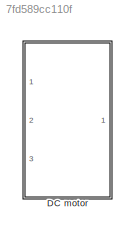
MODEL slx_7fd589cc110f
KIND model
CONFIG AbsTol = auto
CONFIG EnableMultiTasking = off
CONFIG FixedStep = auto
CONFIG MaxStep = auto
CONFIG MinStep = auto
CONFIG RelTol = 1e-3
CONFIG SampleTimeConstraint = Unconstrained
CONFIG SolverName = VariableStepAuto
CONFIG StartTime = 0.0
CONFIG StopTime = 10.0
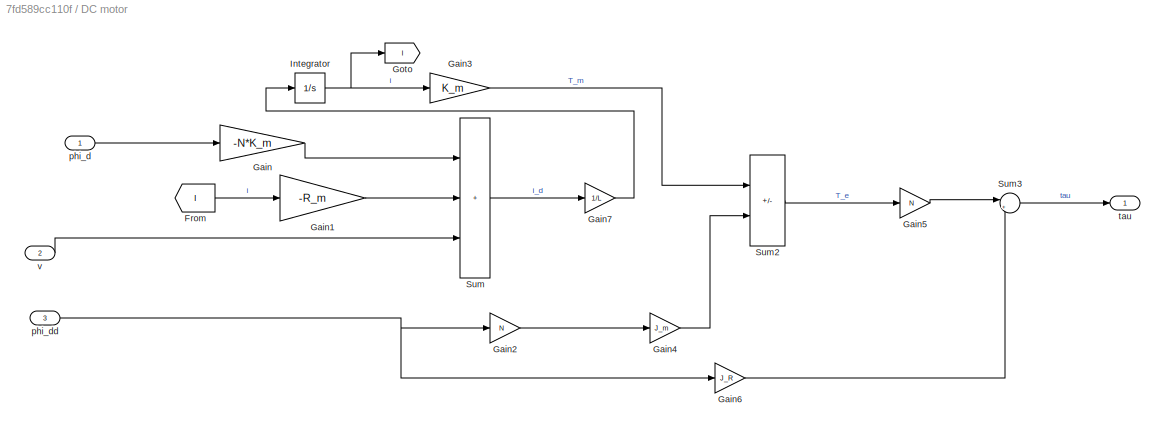
BLOCK [SubSystem] DC motor
  Ports = [3, 1]
  RequestExecContextInheritance = off
BLOCK [From] DC motor/From
  GotoTag = I
BLOCK [Gain] DC motor/Gain
  Gain = -N*K_m
BLOCK [Gain] DC motor/Gain1
  Gain = -R_m
BLOCK [Gain] DC motor/Gain2
  Gain = N
BLOCK [Gain] DC motor/Gain3
  Gain = K_m
BLOCK [Gain] DC motor/Gain4
  Gain = J_m
BLOCK [Gain] DC motor/Gain5
  Gain = N
BLOCK [Gain] DC motor/Gain6
  Gain = J_R
BLOCK [Gain] DC motor/Gain7
  Gain = 1/L
BLOCK [Goto] DC motor/Goto
  GotoTag = I
BLOCK [Integrator] DC motor/Integrator
  Ports = [1, 1]
BLOCK [Sum] DC motor/Sum
  IconShape = rectangular
  Inputs = +++
  Ports = [3, 1]
BLOCK [Sum] DC motor/Sum2
  IconShape = rectangular
  Inputs = +-
  Ports = [2, 1]
BLOCK [Sum] DC motor/Sum3
  Inputs = |+-
  Ports = [2, 1]
BLOCK [Inport] DC motor/phi_d
BLOCK [Inport] DC motor/phi_dd
  Port = 3
BLOCK [Outport] DC motor/tau
BLOCK [Inport] DC motor/v
  Port = 2
LINE DC motor/From:1 -> DC motor/Gain1:1
LINE DC motor/Gain1:1 -> DC motor/Sum:2
LINE DC motor/Gain2:1 -> DC motor/Gain4:1
LINE DC motor/Gain3:1 -> DC motor/Sum2:1
LINE DC motor/Gain4:1 -> DC motor/Sum2:2
LINE DC motor/Gain5:1 -> DC motor/Sum3:1
LINE DC motor/Gain6:1 -> DC motor/Sum3:2
LINE DC motor/Gain7:1 -> DC motor/Integrator:1
LINE DC motor/Gain:1 -> DC motor/Sum:1
NET DC motor/Integrator:1 -> DC motor/Gain3:1, DC motor/Goto:1
LINE DC motor/Sum2:1 -> DC motor/Gain5:1
LINE DC motor/Sum3:1 -> DC motor/tau:1
LINE DC motor/Sum:1 -> DC motor/Gain7:1
LINE DC motor/phi_d:1 -> DC motor/Gain:1
NET DC motor/phi_dd:1 -> DC motor/Gain2:1, DC motor/Gain6:1
LINE DC motor/v:1 -> DC motor/Sum:3
note: NET lines group one-source signal fan-out (src -> all destinations, sorted); 1:1 wires keep LINE
